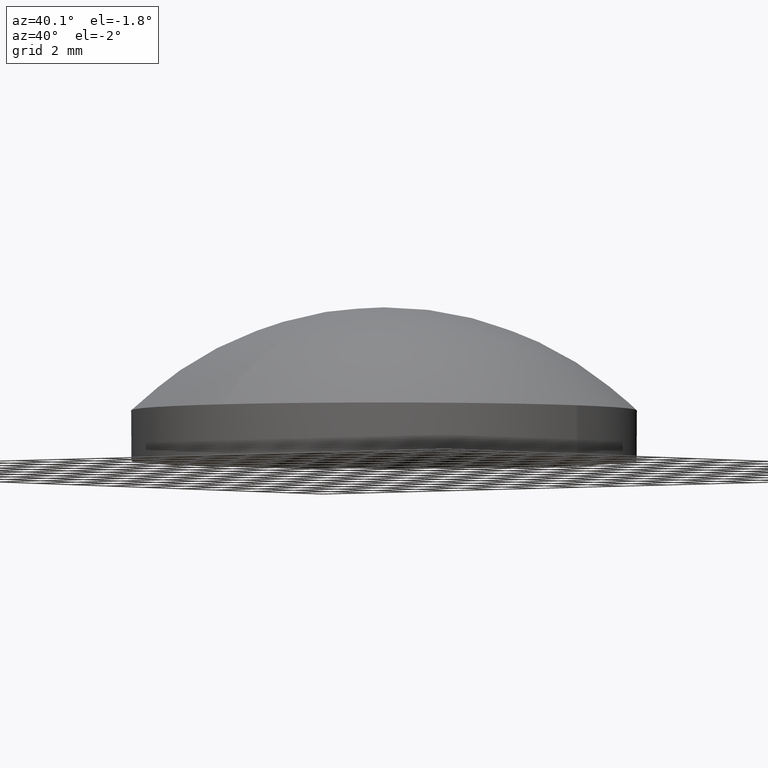
[diagram: clean part render]
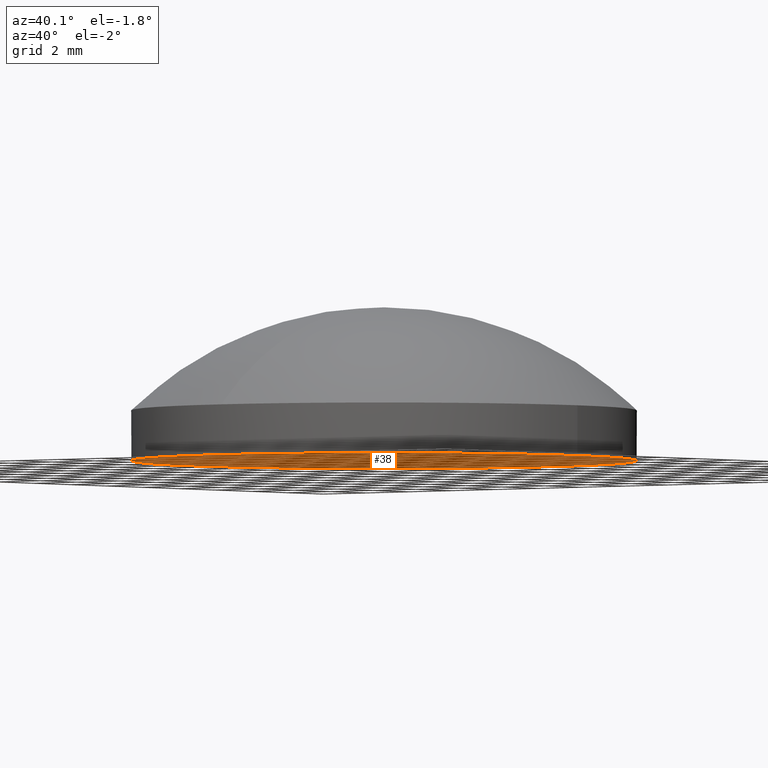
[diagram: same view with one face highlighted and labeled with its STEP entity id]
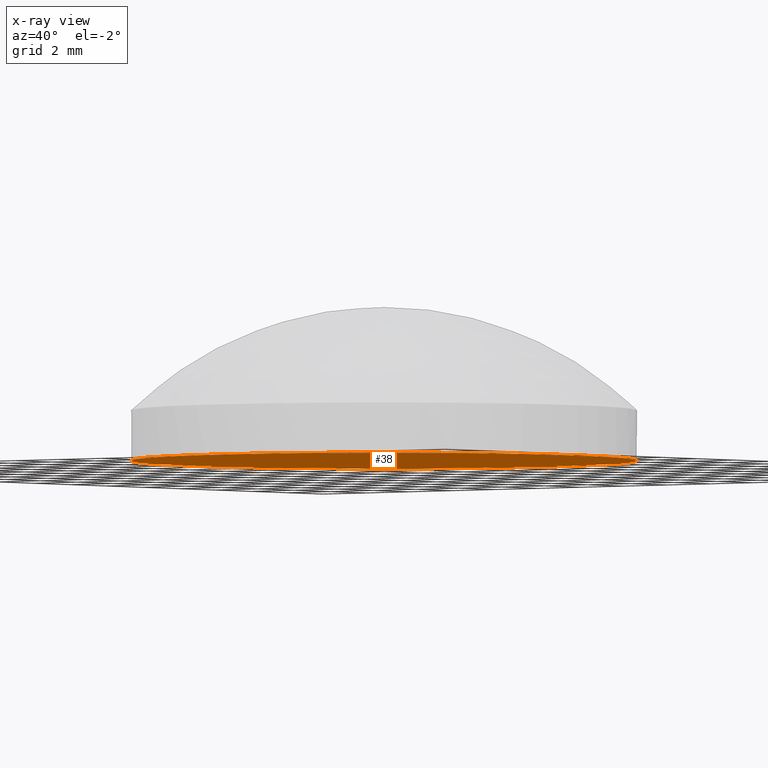
[diagram: x-ray of the same camera — body ghosted, the highlighted face saturated]
A machine part, auxiliary view. The second image highlights one B-rep face of the part: STEP entity #38.
The next image is the same camera in x-ray: the body ghosted, the highlighted face saturated — about 0% of this face is hidden behind the body in this view.
In plain terms, the highlighted planar face has unit normal (0, -0, 1).
Its self-contained STEP definition (entity closure, byte-faithful):
#2 = VERTEX_POINT ( 'NONE', #76 ) ;
#10 = EDGE_CURVE ( 'NONE', #2, #32, #63, .T. ) ;
#15 = EDGE_LOOP ( 'NONE', ( #42, #30 ) ) ;
#19 = EDGE_CURVE ( 'NONE', #32, #2, #82, .T. ) ;
#30 = ORIENTED_EDGE ( 'NONE', *, *, #10, .F. ) ;
#32 = VERTEX_POINT ( 'NONE', #141 ) ;
#37 = CARTESIAN_POINT ( 'NONE',  ( 0.0000000000000000000, 0.0000000000000000000, -2.730000000000000000 ) ) ;
#38 = ADVANCED_FACE ( 'NONE', ( #165 ), #180, .F. ) ;
#42 = ORIENTED_EDGE ( 'NONE', *, *, #19, .F. ) ;
#43 = AXIS2_PLACEMENT_3D ( 'NONE', #37, #48, #46 ) ;
#46 = DIRECTION ( 'NONE',  ( 1.000000000000000000, 0.0000000000000000000, 0.0000000000000000000 ) ) ;
#48 = DIRECTION ( 'NONE',  ( -0.0000000000000000000, -0.0000000000000000000, 1.000000000000000000 ) ) ;
#63 = CIRCLE ( 'NONE', #99, 9.000000000000001800 ) ;
#67 = DIRECTION ( 'NONE',  ( 1.000000000000000000, 0.0000000000000000000, 0.0000000000000000000 ) ) ;
#76 = CARTESIAN_POINT ( 'NONE',  ( -9.000000000000001800, 1.102145718440139700E-015, -2.730000000000000000 ) ) ;
#82 = CIRCLE ( 'NONE', #43, 9.000000000000001800 ) ;
#98 = DIRECTION ( 'NONE',  ( -0.0000000000000000000, -0.0000000000000000000, 1.000000000000000000 ) ) ;
#99 = AXIS2_PLACEMENT_3D ( 'NONE', #102, #98, #67 ) ;
#102 = CARTESIAN_POINT ( 'NONE',  ( 0.0000000000000000000, 0.0000000000000000000, -2.730000000000000000 ) ) ;
#141 = CARTESIAN_POINT ( 'NONE',  ( 9.000000000000001800, 0.0000000000000000000, -2.730000000000000000 ) ) ;
#147 = AXIS2_PLACEMENT_3D ( 'NONE', #153, #184, #183 ) ;
#153 = CARTESIAN_POINT ( 'NONE',  ( 0.0000000000000000000, 1.002985728501682100E-015, -2.730000000000000000 ) ) ;
#165 = FACE_OUTER_BOUND ( 'NONE', #15, .T. ) ;
#180 = PLANE ( 'NONE',  #147 ) ;
#183 = DIRECTION ( 'NONE',  ( 1.000000000000000000, 0.0000000000000000000, 0.0000000000000000000 ) ) ;
#184 = DIRECTION ( 'NONE',  ( 0.0000000000000000000, -0.0000000000000000000, 1.000000000000000000 ) ) ;